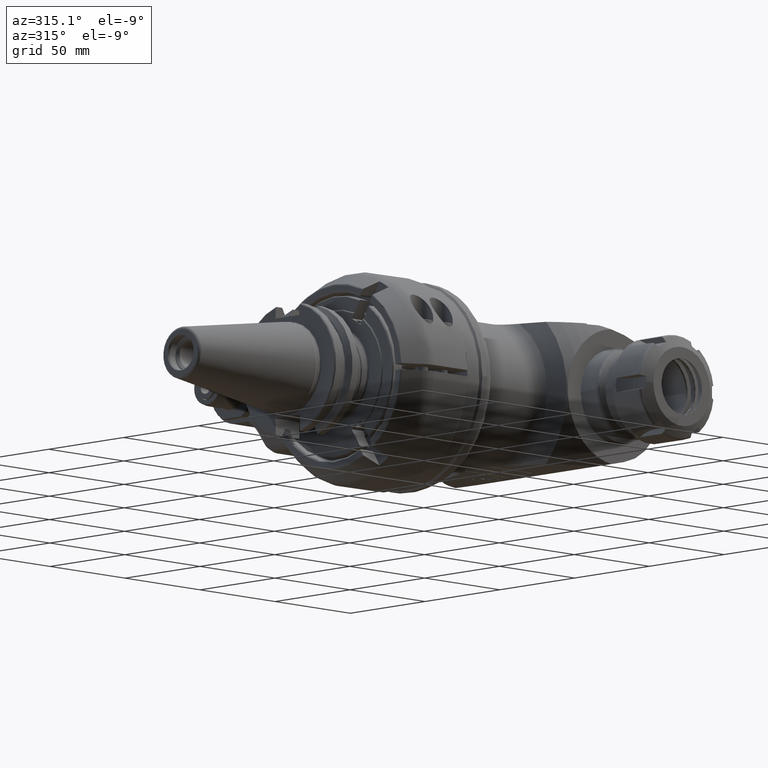
[diagram: clean part render]
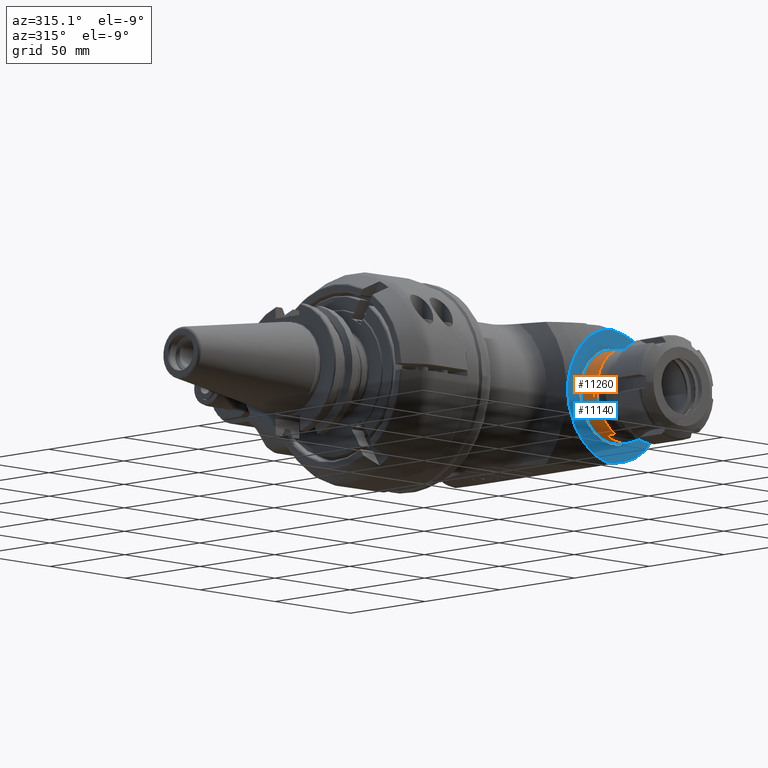
[diagram: same view with the hole feature highlighted: cylindrical wall and planar end face, labeled with their STEP entity ids]
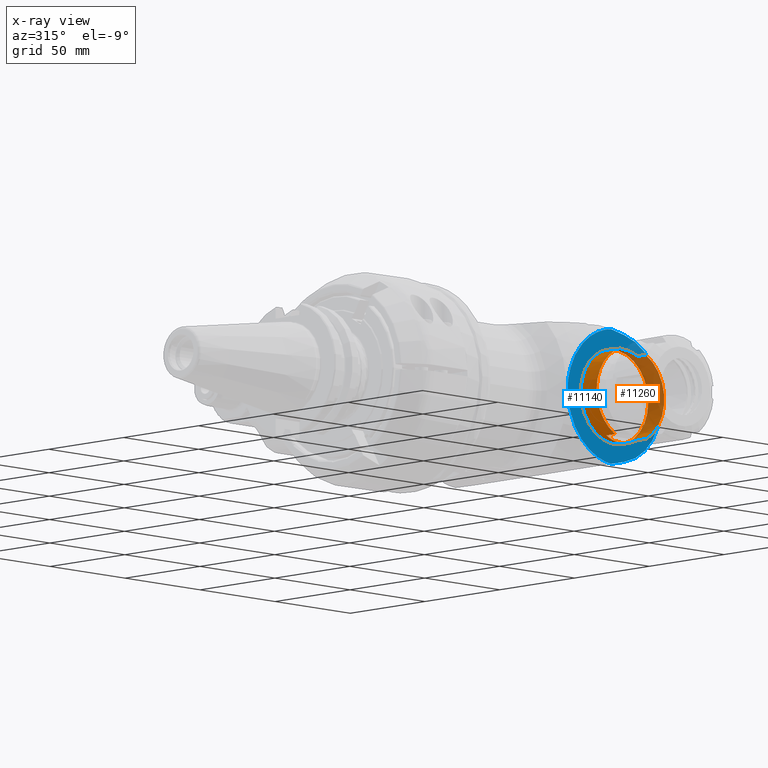
[diagram: x-ray of the same camera — body ghosted, the hole faces saturated]
A machine part, auxiliary view. The highlighted faces form one hole feature of diameter 45 mm: the cylindrical wall (entity #11260, orange) and its adjacent planar end face (entity #11140, blue) — they share a circular edge in the B-rep.
The next image is the same camera in x-ray (body ghosted, the hole faces saturated) — the bore reads through the body.
Wall:
#349=ELLIPSE('',#12394,23.2937140592267,22.5);
#350=ELLIPSE('',#12396,23.2937140592267,22.5);
#1040=LINE('',#27311,#1714);
#1041=LINE('',#27315,#1715);
#1042=LINE('',#27319,#1716);
#1043=LINE('',#27323,#1717);
#1044=LINE('',#27327,#1718);
#1714=VECTOR('',#15044,22.5);
#1715=VECTOR('',#15047,10.);
#1716=VECTOR('',#15050,5.671572875254);
#1717=VECTOR('',#15053,5.671572875254);
#1718=VECTOR('',#15056,5.671572875254);
#2057=CYLINDRICAL_SURFACE('',#12392,22.5);
#2695=FACE_OUTER_BOUND('',#3420,.T.);
#3420=EDGE_LOOP('',(#9408,#9409,#9410,#9411,#9412,#9413,#9414,#9415,#9416,
#9417,#9418,#9419));
#4017=CIRCLE('',#12183,22.5);
#4093=CIRCLE('',#12393,22.5);
#4094=CIRCLE('',#12395,22.5);
#4095=CIRCLE('',#12397,22.5);
#4898=VERTEX_POINT('',#21249);
#5063=VERTEX_POINT('',#27310);
#5064=VERTEX_POINT('',#27312);
#5065=VERTEX_POINT('',#27314);
#5066=VERTEX_POINT('',#27316);
#5067=VERTEX_POINT('',#27318);
#5068=VERTEX_POINT('',#27320);
#5069=VERTEX_POINT('',#27322);
#5070=VERTEX_POINT('',#27324);
#5071=VERTEX_POINT('',#27326);
#6298=EDGE_CURVE('',#4898,#4898,#4017,.T.);
#6573=EDGE_CURVE('',#4898,#5063,#1040,.T.);
#6574=EDGE_CURVE('',#5064,#5063,#4093,.T.);
#6575=EDGE_CURVE('',#5064,#5065,#1041,.T.);
#6576=EDGE_CURVE('',#5065,#5066,#349,.T.);
#6577=EDGE_CURVE('',#5066,#5067,#1042,.T.);
#6578=EDGE_CURVE('',#5068,#5067,#4094,.T.);
#6579=EDGE_CURVE('',#5068,#5069,#1043,.T.);
#6580=EDGE_CURVE('',#5069,#5070,#350,.T.);
#6581=EDGE_CURVE('',#5070,#5071,#1044,.T.);
#6582=EDGE_CURVE('',#5063,#5071,#4095,.T.);
#9408=ORIENTED_EDGE('',*,*,#6298,.F.);
#9409=ORIENTED_EDGE('',*,*,#6573,.T.);
#9410=ORIENTED_EDGE('',*,*,#6574,.F.);
#9411=ORIENTED_EDGE('',*,*,#6575,.T.);
#9412=ORIENTED_EDGE('',*,*,#6576,.T.);
#9413=ORIENTED_EDGE('',*,*,#6577,.T.);
#9414=ORIENTED_EDGE('',*,*,#6578,.F.);
#9415=ORIENTED_EDGE('',*,*,#6579,.T.);
#9416=ORIENTED_EDGE('',*,*,#6580,.T.);
#9417=ORIENTED_EDGE('',*,*,#6581,.T.);
#9418=ORIENTED_EDGE('',*,*,#6582,.F.);
#9419=ORIENTED_EDGE('',*,*,#6573,.F.);
#11260=ADVANCED_FACE('',(#2695),#2057,.T.);
#12183=AXIS2_PLACEMENT_3D('',#21250,#14569,#14570);
#12392=AXIS2_PLACEMENT_3D('',#27309,#15042,#15043);
#12393=AXIS2_PLACEMENT_3D('',#27313,#15045,#15046);
#12394=AXIS2_PLACEMENT_3D('',#27317,#15048,#15049);
#12395=AXIS2_PLACEMENT_3D('',#27321,#15051,#15052);
#12396=AXIS2_PLACEMENT_3D('',#27325,#15054,#15055);
#12397=AXIS2_PLACEMENT_3D('',#27328,#15057,#15058);
#14569=DIRECTION('center_axis',(0.,1.,0.));
#14570=DIRECTION('ref_axis',(-1.,0.,0.));
#15042=DIRECTION('center_axis',(0.,1.,0.));
#15043=DIRECTION('ref_axis',(1.,0.,0.));
#15044=DIRECTION('',(0.,-1.,0.));
#15045=DIRECTION('center_axis',(0.,-1.,0.));
#15046=DIRECTION('ref_axis',(-0.458122847290806,0.,0.888888888888912));
#15047=DIRECTION('',(0.,1.,0.));
#15048=DIRECTION('center_axis',(0.,0.965925826289076,-0.258819045102493));
#15049=DIRECTION('ref_axis',(0.,-0.258819045102493,-0.965925826289076));
#15050=DIRECTION('',(0.,-1.,0.));
#15051=DIRECTION('center_axis',(0.,-1.,0.));
#15052=DIRECTION('ref_axis',(0.458122847290806,0.,-0.888888888888912));
#15053=DIRECTION('',(-1.002251405581E-14,1.,0.));
#15054=DIRECTION('center_axis',(0.,0.965925826289076,0.258819045102493));
#15055=DIRECTION('ref_axis',(0.,0.258819045102493,-0.965925826289076));
#15056=DIRECTION('',(8.018011244652E-14,-1.,-3.194676355291E-14));
#15057=DIRECTION('center_axis',(0.,-1.,0.));
#15058=DIRECTION('ref_axis',(-0.458122847290806,0.,0.888888888888912));
#21249=CARTESIAN_POINT('',(255.563097,-49.,0.));
#21250=CARTESIAN_POINT('Origin',(278.063097,-49.,0.));
#27309=CARTESIAN_POINT('Origin',(278.063097,-49.,0.));
#27310=CARTESIAN_POINT('',(255.563097,-59.67157287525,2.75545529808154E-15));
#27311=CARTESIAN_POINT('',(255.563097,-49.,2.75545529808154E-15));
#27312=CARTESIAN_POINT('',(267.755332936,-59.67157287525,20.));
#27313=CARTESIAN_POINT('Origin',(278.063097,-59.67157287525,0.));
#27314=CARTESIAN_POINT('',(267.755332824441,-54.0000000154,19.9999999727221));
#27315=CARTESIAN_POINT('',(267.755332935956,-49.,20.));
#27316=CARTESIAN_POINT('',(288.370861064,-54.,20.));
#27317=CARTESIAN_POINT('Origin',(278.063097,-59.3589838486218,0.));
#27318=CARTESIAN_POINT('',(288.370861064,-59.67157287525,20.));
#27319=CARTESIAN_POINT('',(288.370861064,-54.,20.));
#27320=CARTESIAN_POINT('',(288.370861064,-59.67157287525,-20.));
#27321=CARTESIAN_POINT('Origin',(278.063097,-59.67157287525,0.));
#27322=CARTESIAN_POINT('',(288.370861064,-54.,-20.));
#27323=CARTESIAN_POINT('',(288.370861064,-59.67157287525,-20.));
#27324=CARTESIAN_POINT('',(267.755332936,-54.,-20.));
#27325=CARTESIAN_POINT('Origin',(278.063097,-59.3589838486218,0.));
#27326=CARTESIAN_POINT('',(267.755332936,-59.67157287525,-20.));
#27327=CARTESIAN_POINT('',(267.755332936,-54.,-20.));
#27328=CARTESIAN_POINT('Origin',(278.063097,-59.67157287525,0.));
End face:
#161=B_SPLINE_CURVE_WITH_KNOTS('',3,(#21104,#21105,#21106,#21107,#21108,
#21109),.UNSPECIFIED.,.F.,.F.,(4,1,1,4),(0.,0.3333333333333,0.6666666666667,
1.),.UNSPECIFIED.);
#162=B_SPLINE_CURVE_WITH_KNOTS('',3,(#21125,#21126,#21127,#21128,#21129,
#21130),.UNSPECIFIED.,.F.,.F.,(4,1,1,4),(0.,0.3333333333333,0.6666666666667,
1.),.UNSPECIFIED.);
#163=B_SPLINE_CURVE_WITH_KNOTS('',3,(#21144,#21145,#21146,#21147,#21148,
#21149,#21150,#21151,#21152,#21153,#21154,#21155,#21156,#21157,#21158,#21159,
#21160,#21161,#21162,#21163,#21164,#21165,#21166,#21167,#21168,#21169,#21170,
#21171,#21172,#21173,#21174,#21175,#21176,#21177,#21178,#21179,#21180,#21181,
#21182,#21183,#21184,#21185,#21186,#21187,#21188,#21189,#21190,#21191,#21192,
#21193,#21194,#21195,#21196,#21197,#21198,#21199,#21200,#21201,#21202,#21203,
#21204,#21205,#21206,#21207,#21208,#21209,#21210,#21211,#21212,#21213,#21214,
#21215,#21216,#21217,#21218,#21219,#21220,#21221,#21222,#21223,#21224,#21225,
#21226,#21227,#21228,#21229,#21230,#21231,#21232,#21233,#21234,#21235,#21236,
#21237),.UNSPECIFIED.,.F.,.F.,(4,3,3,3,3,3,3,3,3,3,3,3,3,3,3,3,3,3,3,3,
3,3,3,3,3,3,3,3,3,3,3,4),(0.,0.03225806451613,0.06451612903226,0.09677419354839,
0.1290322580645,0.1612903225806,0.1935483870968,0.2258064516129,0.258064516129,
0.2903225806452,0.3225806451613,0.3548387096774,0.3870967741935,0.4193548387097,
0.4516129032258,0.4838709677419,0.5161290322581,0.5483870967742,0.5806451612903,
0.6129032258065,0.6451612903226,0.6774193548387,0.7096774193548,0.741935483871,
0.7741935483871,0.8064516129032,0.8387096774194,0.8709677419355,0.9032258064516,
0.9354838709677,0.9677419354839,1.),.UNSPECIFIED.);
#403=(
BOUNDED_CURVE()
B_SPLINE_CURVE(2,(#21112,#21113,#21114),.UNSPECIFIED.,.F.,.F.)
B_SPLINE_CURVE_WITH_KNOTS((3,3),(3.20707301111594,3.6230638269895),
 .UNSPECIFIED.)
CURVE()
GEOMETRIC_REPRESENTATION_ITEM()
RATIONAL_B_SPLINE_CURVE((1.00191687429987,1.00192056490502,1.00189296191226))
REPRESENTATION_ITEM('')
);
#404=(
BOUNDED_CURVE()
B_SPLINE_CURVE(2,(#21121,#21122,#21123),.UNSPECIFIED.,.F.,.F.)
B_SPLINE_CURVE_WITH_KNOTS((3,3),(-3.62306382698901,-3.20707301111594),
 .UNSPECIFIED.)
CURVE()
GEOMETRIC_REPRESENTATION_ITEM()
RATIONAL_B_SPLINE_CURVE((1.00189296191226,1.00192056490502,1.00191687429987))
REPRESENTATION_ITEM('')
);
#405=(
BOUNDED_CURVE()
B_SPLINE_CURVE(2,(#21132,#21133,#21134),.UNSPECIFIED.,.F.,.F.)
B_SPLINE_CURVE_WITH_KNOTS((3,3),(-4.5938610684327,-3.96592695238613),
 .UNSPECIFIED.)
CURVE()
GEOMETRIC_REPRESENTATION_ITEM()
RATIONAL_B_SPLINE_CURVE((1.01702140425687,1.01791095519098,1.01823929117147))
REPRESENTATION_ITEM('')
);
#406=(
BOUNDED_CURVE()
B_SPLINE_CURVE(2,(#21136,#21137,#21138),.UNSPECIFIED.,.F.,.F.)
B_SPLINE_CURVE_WITH_KNOTS((3,3),(-5.3725027995082,-4.60229884792995),
 .UNSPECIFIED.)
CURVE()
GEOMETRIC_REPRESENTATION_ITEM()
RATIONAL_B_SPLINE_CURVE((1.03008869018973,1.03261780529435,1.03380338209163))
REPRESENTATION_ITEM('')
);
#407=(
BOUNDED_CURVE()
B_SPLINE_CURVE(2,(#21140,#21141,#21142),.UNSPECIFIED.,.F.,.F.)
B_SPLINE_CURVE_WITH_KNOTS((3,3),(-6.41200927772598,-5.36525833647607),
 .UNSPECIFIED.)
CURVE()
GEOMETRIC_REPRESENTATION_ITEM()
RATIONAL_B_SPLINE_CURVE((1.05108122623321,1.05770960273314,1.06081251558701))
REPRESENTATION_ITEM('')
);
#408=(
BOUNDED_CURVE()
B_SPLINE_CURVE(2,(#21239,#21240,#21241),.UNSPECIFIED.,.F.,.F.)
B_SPLINE_CURVE_WITH_KNOTS((3,3),(2.47592594978823,3.52267689105108),
 .UNSPECIFIED.)
CURVE()
GEOMETRIC_REPRESENTATION_ITEM()
RATIONAL_B_SPLINE_CURVE((1.05108122623335,1.05770960273333,1.06081251558716))
REPRESENTATION_ITEM('')
);
#409=(
BOUNDED_CURVE()
B_SPLINE_CURVE(2,(#21243,#21244,#21245),.UNSPECIFIED.,.F.,.F.)
B_SPLINE_CURVE_WITH_KNOTS((3,3),(2.47279471239689,3.24299866395291),
 .UNSPECIFIED.)
CURVE()
GEOMETRIC_REPRESENTATION_ITEM()
RATIONAL_B_SPLINE_CURVE((1.03008869018988,1.03261780529438,1.03380338209163))
REPRESENTATION_ITEM('')
);
#410=(
BOUNDED_CURVE()
B_SPLINE_CURVE(2,(#21246,#21247,#21248),.UNSPECIFIED.,.F.,.F.)
B_SPLINE_CURVE_WITH_KNOTS((3,3),(2.60325345584494,3.2311875718915),
 .UNSPECIFIED.)
CURVE()
GEOMETRIC_REPRESENTATION_ITEM()
RATIONAL_B_SPLINE_CURVE((1.01702140425687,1.01791095519099,1.01823929117147))
REPRESENTATION_ITEM('')
);
#983=LINE('',#21090,#1657);
#984=LINE('',#21119,#1658);
#1657=VECTOR('',#14555,8.87507655634284);
#1658=VECTOR('',#14568,8.87507655636703);
#2220=FACE_BOUND('',#3292,.T.);
#2575=FACE_OUTER_BOUND('',#3291,.T.);
#3291=EDGE_LOOP('',(#8779,#8780,#8781,#8782,#8783,#8784,#8785,#8786,#8787,
#8788,#8789,#8790,#8791,#8792));
#3292=EDGE_LOOP('',(#8793));
#4016=CIRCLE('',#12182,31.);
#4017=CIRCLE('',#12183,22.5);
#4883=VERTEX_POINT('',#21087);
#4884=VERTEX_POINT('',#21089);
#4886=VERTEX_POINT('',#21101);
#4887=VERTEX_POINT('',#21103);
#4888=VERTEX_POINT('',#21116);
#4889=VERTEX_POINT('',#21118);
#4890=VERTEX_POINT('',#21120);
#4891=VERTEX_POINT('',#21124);
#4892=VERTEX_POINT('',#21131);
#4893=VERTEX_POINT('',#21135);
#4894=VERTEX_POINT('',#21139);
#4895=VERTEX_POINT('',#21143);
#4896=VERTEX_POINT('',#21238);
#4897=VERTEX_POINT('',#21242);
#4898=VERTEX_POINT('',#21249);
#6280=EDGE_CURVE('',#4884,#4883,#983,.T.);
#6284=EDGE_CURVE('',#4887,#4886,#161,.T.);
#6286=EDGE_CURVE('',#4884,#4886,#403,.T.);
#6287=EDGE_CURVE('',#4883,#4888,#4016,.T.);
#6288=EDGE_CURVE('',#4888,#4889,#984,.T.);
#6289=EDGE_CURVE('',#4890,#4889,#404,.T.);
#6290=EDGE_CURVE('',#4891,#4890,#162,.T.);
#6291=EDGE_CURVE('',#4892,#4891,#405,.T.);
#6292=EDGE_CURVE('',#4893,#4892,#406,.T.);
#6293=EDGE_CURVE('',#4894,#4893,#407,.T.);
#6294=EDGE_CURVE('',#4895,#4894,#163,.T.);
#6295=EDGE_CURVE('',#4895,#4896,#408,.T.);
#6296=EDGE_CURVE('',#4896,#4897,#409,.T.);
#6297=EDGE_CURVE('',#4897,#4887,#410,.T.);
#6298=EDGE_CURVE('',#4898,#4898,#4017,.T.);
#8779=ORIENTED_EDGE('',*,*,#6287,.T.);
#8780=ORIENTED_EDGE('',*,*,#6288,.T.);
#8781=ORIENTED_EDGE('',*,*,#6289,.F.);
#8782=ORIENTED_EDGE('',*,*,#6290,.F.);
#8783=ORIENTED_EDGE('',*,*,#6291,.F.);
#8784=ORIENTED_EDGE('',*,*,#6292,.F.);
#8785=ORIENTED_EDGE('',*,*,#6293,.F.);
#8786=ORIENTED_EDGE('',*,*,#6294,.F.);
#8787=ORIENTED_EDGE('',*,*,#6295,.T.);
#8788=ORIENTED_EDGE('',*,*,#6296,.T.);
#8789=ORIENTED_EDGE('',*,*,#6297,.T.);
#8790=ORIENTED_EDGE('',*,*,#6284,.T.);
#8791=ORIENTED_EDGE('',*,*,#6286,.F.);
#8792=ORIENTED_EDGE('',*,*,#6280,.T.);
#8793=ORIENTED_EDGE('',*,*,#6298,.T.);
#10680=PLANE('',#12181);
#11140=ADVANCED_FACE('',(#2575,#2220),#10680,.T.);
#12181=AXIS2_PLACEMENT_3D('',#21115,#14564,#14565);
#12182=AXIS2_PLACEMENT_3D('',#21117,#14566,#14567);
#12183=AXIS2_PLACEMENT_3D('',#21250,#14569,#14570);
#14555=DIRECTION('',(0.978147600733817,0.,0.207911690817704));
#14564=DIRECTION('center_axis',(0.,-1.,0.));
#14565=DIRECTION('ref_axis',(1.,0.,0.));
#14566=DIRECTION('center_axis',(0.,-1.,0.));
#14567=DIRECTION('ref_axis',(0.207911690817109,0.,-0.978147600733944));
#14568=DIRECTION('',(-0.978147600733797,2.80211619512899E-14,0.207911690817799));
#14569=DIRECTION('center_axis',(0.,1.,0.));
#14570=DIRECTION('ref_axis',(-1.,0.,0.));
#21087=CARTESIAN_POINT('',(284.5083594153,-49.,-30.32257562275));
#21089=CARTESIAN_POINT('',(275.8272245754,-49.,-32.16780779572));
#21090=CARTESIAN_POINT('',(275.8272245754,-49.,-32.16780779572));
#21101=CARTESIAN_POINT('',(271.7592494227,-48.99999999996,-31.5146293911));
#21103=CARTESIAN_POINT('',(266.7592494227,-49.,-29.85333968277));
#21104=CARTESIAN_POINT('Ctrl Pts',(266.7592494227,-49.,-29.85333968277));
#21105=CARTESIAN_POINT('Ctrl Pts',(267.2953953938,-49.,-30.03503906235));
#21106=CARTESIAN_POINT('Ctrl Pts',(268.3806107667,-49.,-30.40039732623));
#21107=CARTESIAN_POINT('Ctrl Pts',(270.0468899221,-49.00000000001,-30.95408943484));
#21108=CARTESIAN_POINT('Ctrl Pts',(271.1841046262,-48.99999999997,-31.32715123373));
#21109=CARTESIAN_POINT('Ctrl Pts',(271.7592494227,-48.99999999997,-31.5146293911));
#21112=CARTESIAN_POINT('Ctrl Pts',(275.8272245754,-49.,-32.1678077957183));
#21113=CARTESIAN_POINT('Ctrl Pts',(273.772374782987,-49.,-31.8402240803416));
#21114=CARTESIAN_POINT('Ctrl Pts',(271.759249422585,-49.,-31.5146293910187));
#21115=CARTESIAN_POINT('Origin',(253.6737269458,-49.,-2.244324640789));
#21116=CARTESIAN_POINT('',(284.5083594154,-49.,30.32257562275));
#21117=CARTESIAN_POINT('Origin',(278.063097,-49.,0.));
#21118=CARTESIAN_POINT('',(275.8272245754,-49.,32.16780779572));
#21119=CARTESIAN_POINT('',(284.5083594154,-49.,30.32257562275));
#21120=CARTESIAN_POINT('',(271.7592494227,-48.99999999994,31.51462939113));
#21121=CARTESIAN_POINT('Ctrl Pts',(271.75924942259,-49.,31.5146293910194));
#21122=CARTESIAN_POINT('Ctrl Pts',(273.77237478299,-49.,31.8402240803419));
#21123=CARTESIAN_POINT('Ctrl Pts',(275.8272245754,-49.,32.1678077957183));
#21124=CARTESIAN_POINT('',(266.7592494227,-49.,29.85333968277));
#21125=CARTESIAN_POINT('Ctrl Pts',(266.7592494227,-49.,29.85333968277));
#21126=CARTESIAN_POINT('Ctrl Pts',(267.295395909,-49.,30.03503923695));
#21127=CARTESIAN_POINT('Ctrl Pts',(268.3806119701,-48.99999999999,30.40039772944));
#21128=CARTESIAN_POINT('Ctrl Pts',(270.0468911163,-49.00000000002,30.95408982831));
#21129=CARTESIAN_POINT('Ctrl Pts',(271.1841051385,-48.99999999996,31.32715140075));
#21130=CARTESIAN_POINT('Ctrl Pts',(271.7592494227,-48.99999999996,31.51462939113));
#21131=CARTESIAN_POINT('',(261.7592494227,-49.,27.18957934988));
#21132=CARTESIAN_POINT('Ctrl Pts',(261.759249422699,-49.,27.1895793498731));
#21133=CARTESIAN_POINT('Ctrl Pts',(264.14250573312,-49.,28.5057264571303));
#21134=CARTESIAN_POINT('Ctrl Pts',(266.7592494227,-49.,29.8533396827692));
#21135=CARTESIAN_POINT('',(256.7592494227,-48.99999999982,23.20825135914));
#21136=CARTESIAN_POINT('Ctrl Pts',(256.759249422884,-49.,23.208251358924));
#21137=CARTESIAN_POINT('Ctrl Pts',(259.061754414831,-49.,25.1660582032215));
#21138=CARTESIAN_POINT('Ctrl Pts',(261.7592494227,-49.,27.1895793498804));
#21139=CARTESIAN_POINT('',(251.7592494227,-49.,17.06560767263));
#21140=CARTESIAN_POINT('Ctrl Pts',(251.759249422661,-49.,17.0656076725923));
#21141=CARTESIAN_POINT('Ctrl Pts',(253.877944785324,-49.,20.0694406913619));
#21142=CARTESIAN_POINT('Ctrl Pts',(256.759249422881,-49.,23.2082513589723));
#21143=CARTESIAN_POINT('',(251.7592494227,-48.99999999997,-17.06560767273));
#21144=CARTESIAN_POINT('Ctrl Pts',(251.759249422696,-48.9999999999871,-17.0656076727325));
#21145=CARTESIAN_POINT('Ctrl Pts',(251.524185764702,-48.9999999999761,-16.6529788263086));
#21146=CARTESIAN_POINT('Ctrl Pts',(251.299124413849,-49.000001292331,-16.2445471922204));
#21147=CARTESIAN_POINT('Ctrl Pts',(251.083946030094,-49.0000000000111,-15.8406779882242));
#21148=CARTESIAN_POINT('Ctrl Pts',(250.868767646338,-48.9999987076912,-15.436808784228));
#21149=CARTESIAN_POINT('Ctrl Pts',(250.663469401124,-48.9999994888254,-15.037503528703));
#21150=CARTESIAN_POINT('Ctrl Pts',(250.467445000821,-49.0000000000225,-14.6422159380029));
#21151=CARTESIAN_POINT('Ctrl Pts',(250.271420600518,-49.0000005112196,-14.2469283473028));
#21152=CARTESIAN_POINT('Ctrl Pts',(250.084670534936,-48.9999999301844,-13.8556582089906));
#21153=CARTESIAN_POINT('Ctrl Pts',(249.906731038208,-49.000000000014,-13.4680269746519));
#21154=CARTESIAN_POINT('Ctrl Pts',(249.72879154148,-49.0000000698435,-13.0803957403134));
#21155=CARTESIAN_POINT('Ctrl Pts',(249.559662805909,-49.0000004753687,-12.6964032998933));
#21156=CARTESIAN_POINT('Ctrl Pts',(249.398943739134,-49.0000000000264,-12.3157390357467));
#21157=CARTESIAN_POINT('Ctrl Pts',(249.238224672359,-48.9999995246842,-11.9350747716001));
#21158=CARTESIAN_POINT('Ctrl Pts',(249.085914656551,-48.9999992025435,-11.5577389604215));
#21159=CARTESIAN_POINT('Ctrl Pts',(248.941580502665,-49.0000000000325,-11.1832252840969));
#21160=CARTESIAN_POINT('Ctrl Pts',(248.797246348778,-49.0000007975215,-10.808711607771));
#21161=CARTESIAN_POINT('Ctrl Pts',(248.660889119466,-49.0000009220498,-10.4370196471794));
#21162=CARTESIAN_POINT('Ctrl Pts',(248.532244895097,-49.0000000000329,-10.0679938491713));
#21163=CARTESIAN_POINT('Ctrl Pts',(248.403600670728,-48.9999990780161,-9.69896805116431));
#21164=CARTESIAN_POINT('Ctrl Pts',(248.282668346753,-48.9999989829421,-9.33260880535847));
#21165=CARTESIAN_POINT('Ctrl Pts',(248.169098345462,-49.0000000000366,-8.96840399351352));
#21166=CARTESIAN_POINT('Ctrl Pts',(248.055528344171,-49.0000010171312,-8.60419918166857));
#21167=CARTESIAN_POINT('Ctrl Pts',(247.949321975826,-49.0000009135305,-8.24214839554668));
#21168=CARTESIAN_POINT('Ctrl Pts',(247.850296841284,-49.0000000000273,-7.88217063143132));
#21169=CARTESIAN_POINT('Ctrl Pts',(247.751271706742,-48.999999086524,-7.52219286731484));
#21170=CARTESIAN_POINT('Ctrl Pts',(247.659426666314,-48.9999993136334,-7.16428843146572));
#21171=CARTESIAN_POINT('Ctrl Pts',(247.574504637857,-49.0000000000167,-6.8080065496162));
#21172=CARTESIAN_POINT('Ctrl Pts',(247.4895826094,-49.0000006863999,-6.45172466776779));
#21173=CARTESIAN_POINT('Ctrl Pts',(247.411584431235,-49.0000003919897,-6.09706515135046));
#21174=CARTESIAN_POINT('Ctrl Pts',(247.340357663452,-49.0000000000258,-5.74385377480919));
#21175=CARTESIAN_POINT('Ctrl Pts',(247.269130895668,-48.9999996080619,-5.39064239826793));
#21176=CARTESIAN_POINT('Ctrl Pts',(247.204675065861,-48.9999999329393,-5.03887924360633));
#21177=CARTESIAN_POINT('Ctrl Pts',(247.146831050946,-49.0000000000355,-4.68823721636508));
#21178=CARTESIAN_POINT('Ctrl Pts',(247.088987036031,-49.0000000671317,-4.33759518912382));
#21179=CARTESIAN_POINT('Ctrl Pts',(247.037754969599,-48.9999996445822,-3.98807428317122));
#21180=CARTESIAN_POINT('Ctrl Pts',(246.993022608266,-49.0000000000296,-3.6393927751503));
#21181=CARTESIAN_POINT('Ctrl Pts',(246.948290246933,-49.000000355477,-3.29071126712829));
#21182=CARTESIAN_POINT('Ctrl Pts',(246.910058038584,-49.0000007163803,-2.94286908296468));
#21183=CARTESIAN_POINT('Ctrl Pts',(246.878250231794,-49.0000000000103,-2.59573207724715));
#21184=CARTESIAN_POINT('Ctrl Pts',(246.846442425004,-48.9999992836402,-2.2485950715307));
#21185=CARTESIAN_POINT('Ctrl Pts',(246.821058123325,-48.9999990401333,-1.90216333917388));
#21186=CARTESIAN_POINT('Ctrl Pts',(246.802030321877,-49.0000000000106,-1.55601006036183));
#21187=CARTESIAN_POINT('Ctrl Pts',(246.783002520429,-49.0000009598879,-1.20985678154977));
#21188=CARTESIAN_POINT('Ctrl Pts',(246.770332395925,-49.0000010858911,-0.86398188379374));
#21189=CARTESIAN_POINT('Ctrl Pts',(246.76399795234,-49.0000000000179,-0.518344358038074));
#21190=CARTESIAN_POINT('Ctrl Pts',(246.757663508754,-48.9999989141446,-0.172706832281338));
#21191=CARTESIAN_POINT('Ctrl Pts',(246.757663420775,-48.9999989122031,0.1726932945014));
#21192=CARTESIAN_POINT('Ctrl Pts',(246.76399770728,-49.0000000000346,0.518330980684274));
#21193=CARTESIAN_POINT('Ctrl Pts',(246.770331993785,-49.0000010878662,0.863968666866076));
#21194=CARTESIAN_POINT('Ctrl Pts',(246.783001982104,-49.0000009661637,1.20984388561144));
#21195=CARTESIAN_POINT('Ctrl Pts',(246.802029603097,-49.000000000034,1.55599698468346));
#21196=CARTESIAN_POINT('Ctrl Pts',(246.82105722409,-48.9999990339042,1.90215008375549));
#21197=CARTESIAN_POINT('Ctrl Pts',(246.846441293395,-48.9999992738547,2.24858113589636));
#21198=CARTESIAN_POINT('Ctrl Pts',(246.878249015784,-49.0000000000275,2.59571880535186));
#21199=CARTESIAN_POINT('Ctrl Pts',(246.910056738174,-49.0000007262002,2.94285647480844));
#21200=CARTESIAN_POINT('Ctrl Pts',(246.948289023196,-49.0000003657901,3.29070066555265));
#21201=CARTESIAN_POINT('Ctrl Pts',(246.993021364112,-49.0000000000088,3.63938307756639));
#21202=CARTESIAN_POINT('Ctrl Pts',(247.037753705027,-48.9999996342276,3.98806548957904));
#21203=CARTESIAN_POINT('Ctrl Pts',(247.08898564054,-49.0000000587837,4.33758619868617));
#21204=CARTESIAN_POINT('Ctrl Pts',(247.146829674387,-49.0000000000224,4.68822887200898));
#21205=CARTESIAN_POINT('Ctrl Pts',(247.204673708234,-48.9999999412612,5.03887154533179));
#21206=CARTESIAN_POINT('Ctrl Pts',(247.269129717068,-48.9999996133946,5.39063618720668));
#21207=CARTESIAN_POINT('Ctrl Pts',(247.340356596797,-49.000000000033,5.74384848518987));
#21208=CARTESIAN_POINT('Ctrl Pts',(247.411583476527,-49.0000003866714,6.09706078317306));
#21209=CARTESIAN_POINT('Ctrl Pts',(247.489581693374,-49.0000006840432,6.45172065663423));
#21210=CARTESIAN_POINT('Ctrl Pts',(247.574503778752,-49.0000000000255,6.80800294531225));
#21211=CARTESIAN_POINT('Ctrl Pts',(247.65942586413,-48.9999993160077,7.16428523399137));
#21212=CARTESIAN_POINT('Ctrl Pts',(247.751270981823,-48.9999990870698,7.522190125852));
#21213=CARTESIAN_POINT('Ctrl Pts',(247.850296206133,-49.0000000000294,7.88216832246868));
#21214=CARTESIAN_POINT('Ctrl Pts',(247.949321430443,-49.0000009129891,8.24214651908424));
#21215=CARTESIAN_POINT('Ctrl Pts',(248.0555279011,-49.0000010172512,8.60419771423707));
#21216=CARTESIAN_POINT('Ctrl Pts',(248.169097980944,-49.0000000000104,8.96840282471125));
#21217=CARTESIAN_POINT('Ctrl Pts',(248.282668060788,-48.9999989827697,9.33260793518544));
#21218=CARTESIAN_POINT('Ctrl Pts',(248.40360043887,-48.9999990780572,9.69896736942232));
#21219=CARTESIAN_POINT('Ctrl Pts',(248.532244732163,-49.0000000000048,10.0679933819152));
#21220=CARTESIAN_POINT('Ctrl Pts',(248.660889025457,-49.0000009219525,10.4370193944092));
#21221=CARTESIAN_POINT('Ctrl Pts',(248.797246338882,-49.0000007964454,10.8087115953856));
#21222=CARTESIAN_POINT('Ctrl Pts',(248.941580606491,-49.0000000000156,11.1832255535747));
#21223=CARTESIAN_POINT('Ctrl Pts',(249.0859148741,-48.9999992035857,11.5577395117626));
#21224=CARTESIAN_POINT('Ctrl Pts',(249.238225034508,-48.9999995266739,11.9350756458369));
#21225=CARTESIAN_POINT('Ctrl Pts',(249.398944093448,-49.0000000000322,12.3157398749216));
#21226=CARTESIAN_POINT('Ctrl Pts',(249.559663152387,-49.0000004733904,12.6964041040063));
#21227=CARTESIAN_POINT('Ctrl Pts',(249.728791724767,-49.0000000678615,13.0803961526187));
#21228=CARTESIAN_POINT('Ctrl Pts',(249.906731137982,-49.0000000000304,13.4680271919431));
#21229=CARTESIAN_POINT('Ctrl Pts',(250.084670551196,-48.9999999321992,13.8556582312676));
#21230=CARTESIAN_POINT('Ctrl Pts',(250.271420615608,-49.0000005127841,14.2469283701263));
#21231=CARTESIAN_POINT('Ctrl Pts',(250.467444953359,-49.0000000000116,14.6422158423323));
#21232=CARTESIAN_POINT('Ctrl Pts',(250.663469291111,-48.9999994872392,15.0375033145395));
#21233=CARTESIAN_POINT('Ctrl Pts',(250.868767410394,-48.9999987067146,15.4368083335447));
#21234=CARTESIAN_POINT('Ctrl Pts',(251.083945779573,-49.0000000000179,15.8406775179953));
#21235=CARTESIAN_POINT('Ctrl Pts',(251.299124148752,-49.0000012933212,16.2445467024445));
#21236=CARTESIAN_POINT('Ctrl Pts',(251.524185597787,-49.0000000000207,16.652978533177));
#21237=CARTESIAN_POINT('Ctrl Pts',(251.75924942269,-49.000000000017,17.0656076726359));
#21238=CARTESIAN_POINT('',(256.7592494227,-48.99999999969,-23.20825135941));
#21239=CARTESIAN_POINT('Ctrl Pts',(251.759249422709,-49.,-17.065607672659));
#21240=CARTESIAN_POINT('Ctrl Pts',(253.877944785406,-49.,-20.0694406914665));
#21241=CARTESIAN_POINT('Ctrl Pts',(256.759249423016,-49.,-23.2082513591189));
#21242=CARTESIAN_POINT('',(261.7592494227,-49.,-27.18957934988));
#21243=CARTESIAN_POINT('Ctrl Pts',(256.759249423017,-49.,-23.2082513590373));
#21244=CARTESIAN_POINT('Ctrl Pts',(259.061754414909,-49.,-25.16605820328));
#21245=CARTESIAN_POINT('Ctrl Pts',(261.7592494227,-49.,-27.1895793498804));
#21246=CARTESIAN_POINT('Ctrl Pts',(261.759249422699,-49.,-27.1895793498731));
#21247=CARTESIAN_POINT('Ctrl Pts',(264.14250573312,-49.,-28.5057264571303));
#21248=CARTESIAN_POINT('Ctrl Pts',(266.7592494227,-49.,-29.8533396827692));
#21249=CARTESIAN_POINT('',(255.563097,-49.,0.));
#21250=CARTESIAN_POINT('Origin',(278.063097,-49.,0.));